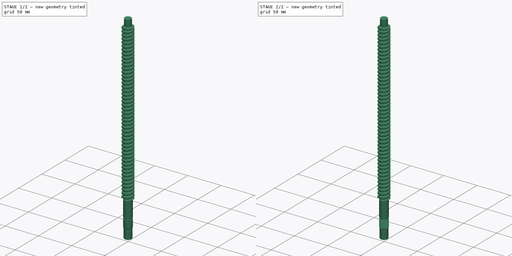
[diagram: build sequence overview — one tinted view per stage of 2, left to right]
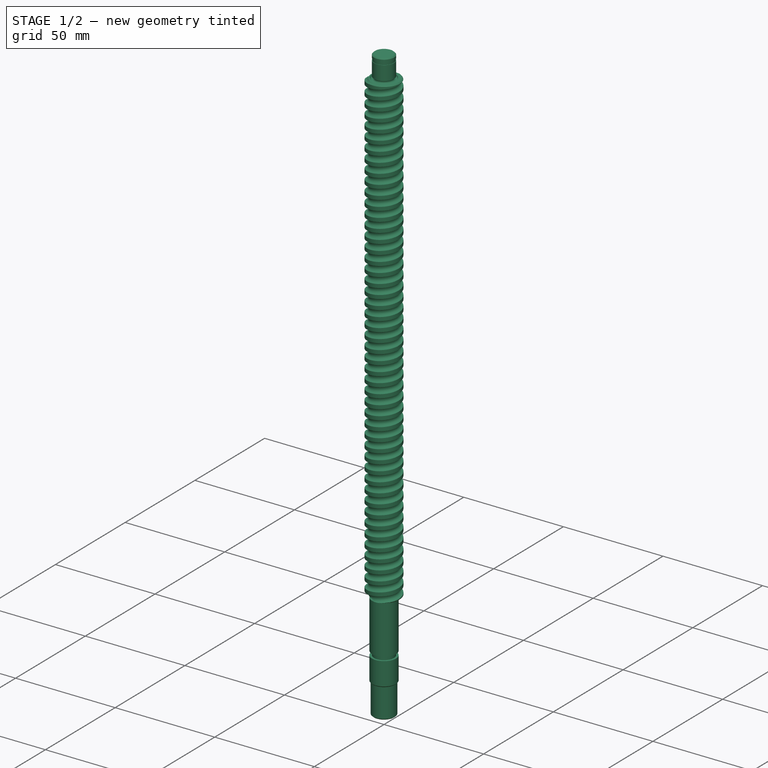
[diagram: stage 1 of 2 — iso view after this stage's code; geometry added in this stage tinted green]
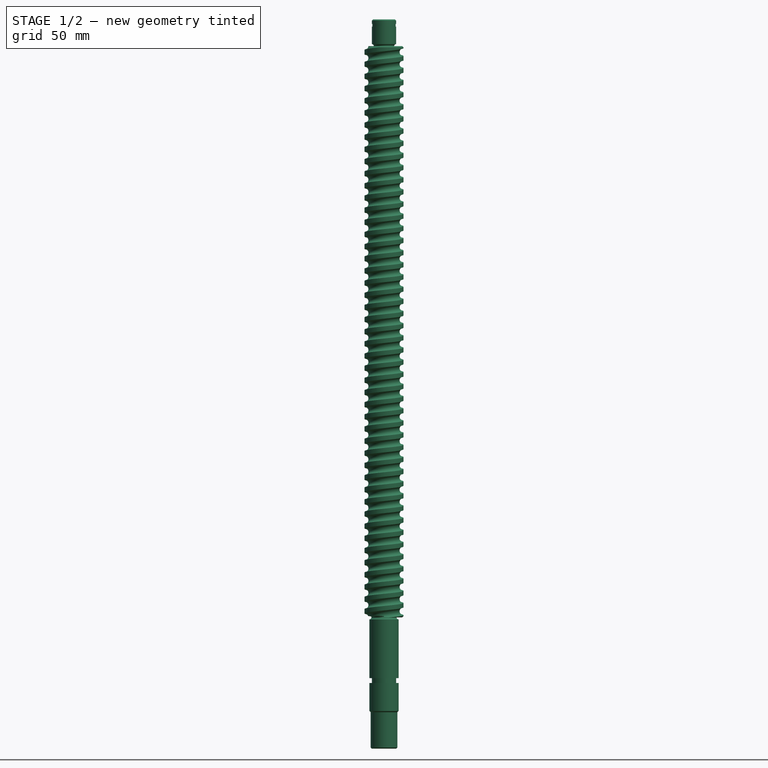
[diagram: stage 1 of 2 — front view after this stage's code; geometry added in this stage tinted green]
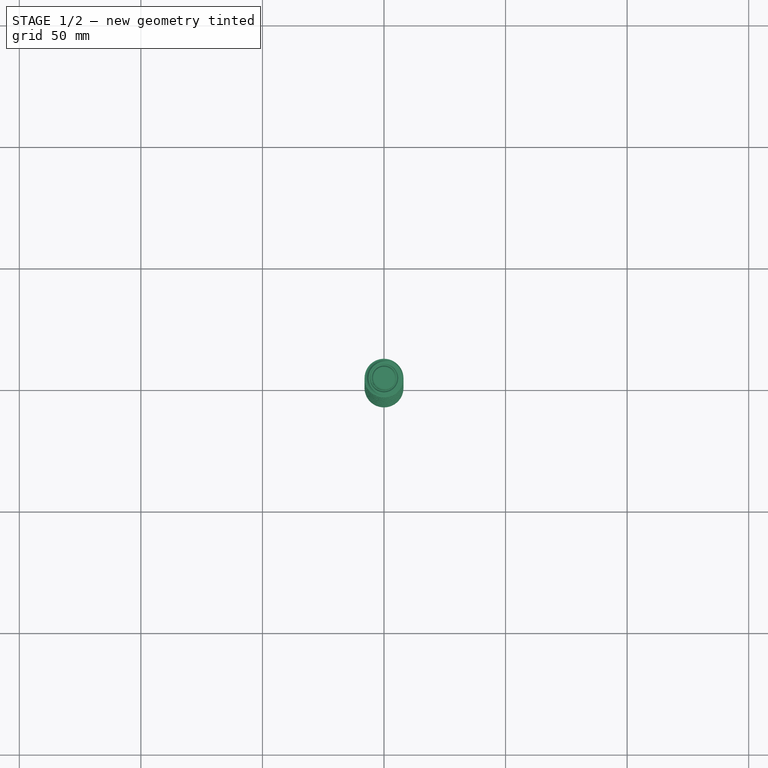
[diagram: stage 1 of 2 — top view after this stage's code; geometry added in this stage tinted green]
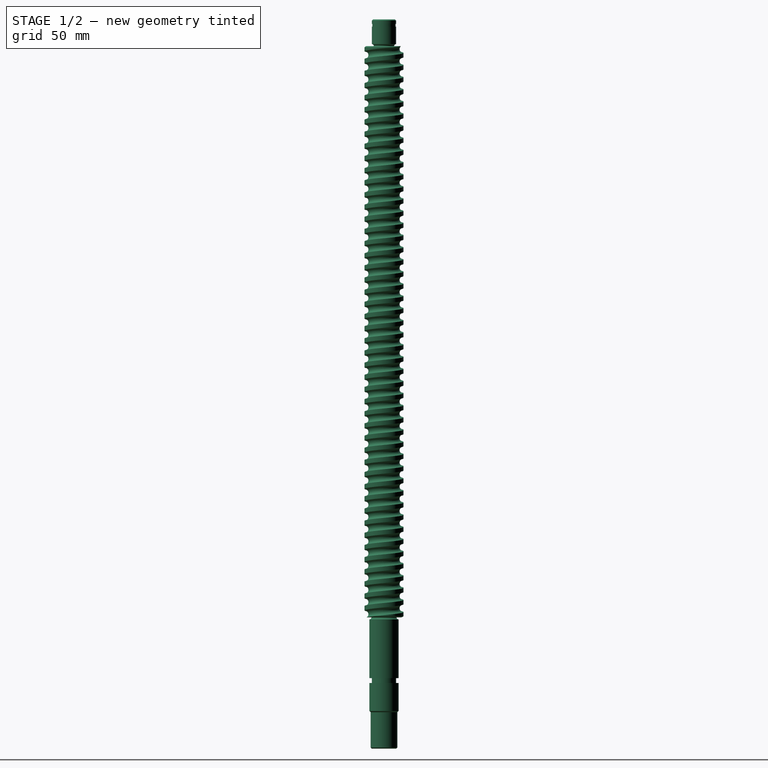
[diagram: stage 1 of 2 — right view after this stage's code; geometry added in this stage tinted green]
FCSTD DOCUMENT  (FreeCAD 0.20R29177 (Git))
Label: SFU1605-300-L
License: All rights reserved
LicenseURL: http://en.wikipedia.org/wiki/All_rights_reserved
objects: Sketcher::SketchObject×3, PartDesign::SubtractiveHelix×2, PartDesign::Revolution×1, PartDesign::Body×1
note: 10 computed .brp shape members not serialized (recipe doc carries the construction recipe); baked Part::Feature solids carry a one-line shape summary decoded from their .brp

FEATURE [Sketcher::SketchObject] Sketch
  FullyConstrained = true
  MapMode = 5
  Placement = pos=(0,0,0) rot=(1,0,0;1.5708rad)
  Support = -> [XZ_Plane]
  sketch-geometry (25):
    g0: LineSegment StartX=3.64e-14 StartY=-54 StartZ=0 EndX=5 EndY=-54 EndZ=0
    g1: LineSegment StartX=5 StartY=-54 StartZ=0 EndX=5.5 EndY=-53.5 EndZ=0
    g2: LineSegment StartX=5.5 StartY=-53.5 StartZ=0 EndX=5.5 EndY=-39 EndZ=0
    g3: LineSegment StartX=5.5 StartY=-39 StartZ=0 EndX=6 EndY=-38.5 EndZ=0
    g4: LineSegment StartX=6 StartY=-38.5 StartZ=0 EndX=6 EndY=-27 EndZ=0
    g5: LineSegment StartX=6 StartY=-27 StartZ=0 EndX=5 EndY=-27 EndZ=0
    g6: LineSegment StartX=5 StartY=-27 StartZ=0 EndX=5 EndY=-25 EndZ=0
    g7: LineSegment StartX=5 StartY=-25 StartZ=0 EndX=6 EndY=-25 EndZ=0
    g8: LineSegment StartX=6 StartY=-25 StartZ=0 EndX=6 EndY=-0.8 EndZ=0
    g9: ArcOfCircle CenterX=6 CenterY=1.3575e-12 CenterZ=0 NormalX=0 NormalY=0 NormalZ=1 AngleXU=0 Radius=0.8 StartAngle=0 EndAngle=4.71239
    g10: LineSegment StartX=6.8 StartY=1.3575e-12 StartZ=0 EndX=7.5 EndY=1.3575e-12 EndZ=0
    g11: LineSegment StartX=7.5 StartY=1.3575e-12 StartZ=0 EndX=8 EndY=0.5 EndZ=0
    g12: LineSegment StartX=8 StartY=0.5 StartZ=0 EndX=8 EndY=234.5 EndZ=0
    g13: LineSegment StartX=8 StartY=234.5 StartZ=0 EndX=7.5 EndY=235 EndZ=0
    g14: LineSegment StartX=7.5 StartY=235 StartZ=0 EndX=5.8 EndY=235 EndZ=0
    g15: GeomPoint X=8 Y=234.5 Z=0
    g16: ArcOfCircle CenterX=5 CenterY=235 CenterZ=0 NormalX=0 NormalY=0 NormalZ=1 AngleXU=0 Radius=0.8 StartAngle=1.5708 EndAngle=6.28319
    g17: LineSegment StartX=5 StartY=235.8 StartZ=0 EndX=5 EndY=243 EndZ=0
    g18: LineSegment StartX=5 StartY=243 StartZ=0 EndX=4.8 EndY=243 EndZ=0
    g19: LineSegment StartX=4.8 StartY=243 StartZ=0 EndX=4.8 EndY=244.15 EndZ=0
    g20: LineSegment StartX=4.8 StartY=244.15 StartZ=0 EndX=5 EndY=244.15 EndZ=0
    g21: LineSegment StartX=5 StartY=244.15 StartZ=0 EndX=5 EndY=245.5 EndZ=0
    g22: LineSegment StartX=5 StartY=245.5 StartZ=0 EndX=4.5 EndY=246 EndZ=0
    g23: LineSegment StartX=4.5 StartY=246 StartZ=0 EndX=3.64e-14 EndY=246 EndZ=0
    g24: LineSegment StartX=3.64e-14 StartY=246 StartZ=0 EndX=3.64e-14 EndY=-54 EndZ=0
  constraints (75):
    c: Horizontal(g0)
    c: Coincident(g0,g1)
    c: Coincident(g1,g2)
    c: Vertical(g2)
    c: Coincident(g2,g3)
    c: Coincident(g3,g4)
    c: Vertical(g4)
    c: Coincident(g4,g5)
    c: Coincident(g5,g6)
    c: Coincident(g6,g7)
    c: Coincident(g7,g8)
    c: Vertical(g8)
    c: Coincident(g9,g8)
    c: Coincident(g9,g10)
    c: Coincident(g10,g11)
    c: Coincident(g11,g12)
    c: Vertical(g12)
    c: Horizontal(g10)
    c: Angle(g11,g10) = 2.35619
    c: Coincident(g13,g14)
    c: Horizontal(g14)
    c: Coincident(g15,g13)
    c: Coincident(g13,g12)
    c: Coincident(g16,g14)
    c: Vertical(g17)
    c: Coincident(g17,g18)
    c: Coincident(g18,g19)
    c: Vertical(g19)
    c: Coincident(g19,g20)
    c: Coincident(g20,g21)
    c: Vertical(g21)
    c: Coincident(g21,g22)
    c: Coincident(g22,g23)
    c: Horizontal(g23)
    c: Coincident(g23,g24)
    c: Coincident(g24,g0)
    c: Vertical(g24)
    c: Horizontal(g5)
    c: Horizontal(g7)
    c: Vertical(g6)
    c: Coincident(g17,g16)
    c: Horizontal(g20)
    c: Horizontal(g18)
    c: Vertical(g20,g17)
    c: Angle(g22,g21) = 2.35619
    c: DistanceY(g21,g22) = 0.5
    c: Angle(g13,g12) = 2.35619
    c: DistanceY(g12,g13) = 0.5
    c: Angle(g1,g0) = 2.35619
    c: DistanceY(g0,g1) = 0.5
    c: Angle(g4,g3) = 2.35619
    c: DistanceY(g2,g3) = 0.5
    c: Vertical(g7,g4)
    c: DistanceX(g0,g0) = 5
    c: DistanceY(g0,g2) = 15
    c: DistanceY(g2,g4) = 12
    c: DistanceY(g6,g6) = 2
    c: DistanceX(g5,g4) = 1
    c: DistanceY(g10,g11) = 0.5
    c: Vertical(g9,g8)
    c: Radius(g9) = 0.8
    c: DistanceX(g0,g11) = 8
    c: Horizontal(g9,g9)
    c: DistanceY(g2,g9) = 39
    c: DistanceY(g0,g23) = 300
    c: Vertical(g16,g16)
    c: Horizontal(g16,g14)
    c: Radius(g16) = 0.8
    c: DistanceX(g23,g21) = 5
    c: DistanceX(g19,g20) = 0.2
    c: DistanceY(g17,g20) = 1.15
    c: DistanceY(g16,g23) = 11
    c: DistanceY(g14,g17) = 8
    c: PointOnObject(g23,g-2)
    c: PointOnObject(g9,g-1)
FEATURE [PartDesign::Revolution] Revolution
  Angle = 360
  Axis = (0,-2e-16,1)
  Base = (0,0,0)
  Placement = pos=(0,0,0) rot=(1,0,0;1.5708rad)
  Profile = -> Sketch
  ReferenceAxis = -> Sketch [V_Axis]
FEATURE [Sketcher::SketchObject] Sketch001
  FullyConstrained = false
  MapMode = 5
  Placement = pos=(0,0,0) rot=(1,0,0;1.5708rad)
  Support = -> [XZ_Plane]
  sketch-geometry (1):
    g0: Circle CenterX=8 CenterY=-2.45988 CenterZ=0 NormalX=0 NormalY=0 NormalZ=1 AngleXU=0 Radius=1.5875
  constraints (2):
    c: Diameter(g0) = 3.175
    c: DistanceX(g-1,g0) = 8
FEATURE [Sketcher::SketchObject] Sketch002
  FullyConstrained = false
  MapMode = 5
  Placement = pos=(0,0,0) rot=(1,0,0;1.5708rad)
  Support = -> [XZ_Plane]
  sketch-geometry (3):
    g0: LineSegment StartX=5.45 StartY=-39.2044 StartZ=0 EndX=6.22618 EndY=-39.6525 EndZ=0
    g1: LineSegment StartX=6.22618 StartY=-39.6525 StartZ=0 EndX=6.22618 EndY=-38.7563 EndZ=0
    g2: LineSegment StartX=6.22618 StartY=-38.7563 StartZ=0 EndX=5.45 EndY=-39.2044 EndZ=0
  constraints (7):
    c: Coincident(g0,g1)
    c: Vertical(g1)
    c: Coincident(g1,g2)
    c: Coincident(g2,g0)
    c: Equal(g0,g2)
    c: Equal(g2,g1)
    c: DistanceX(g-1,g0) = 5.45
FEATURE [PartDesign::SubtractiveHelix] SubtractiveHelix
  Angle = 0
  Axis = (0,-2e-16,1)
  Base = (0,0,0)
  BaseFeature = -> Revolution
  Growth = 0
  HasBeenEdited = true
  Height = 310
  LeftHanded = false
  Mode = 0
  Outside = false
  Pitch = 5
  Placement = pos=(0,0,0) rot=(1,0,0;1.5708rad)
  Profile = -> Sketch001
  ReferenceAxis = -> Sketch001 [V_Axis]
  Turns = 62
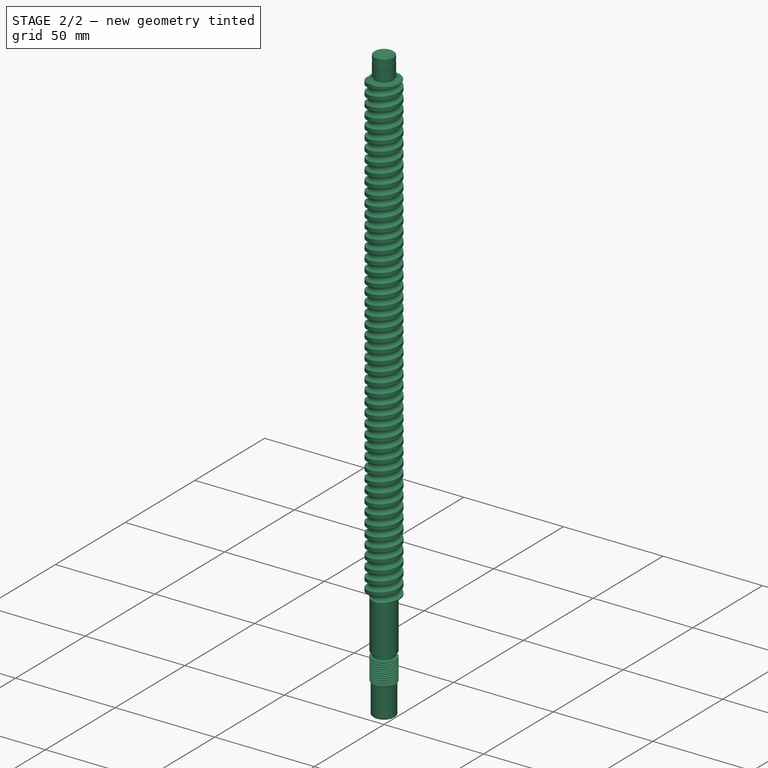
[diagram: stage 2 of 2 — iso view after this stage's code; geometry added in this stage tinted green]
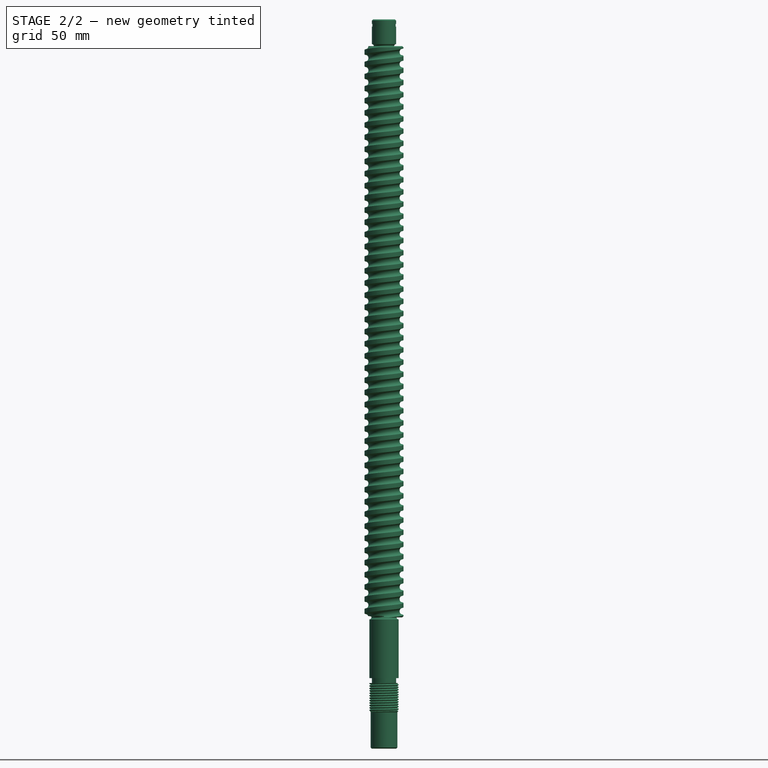
[diagram: stage 2 of 2 — front view after this stage's code; geometry added in this stage tinted green]
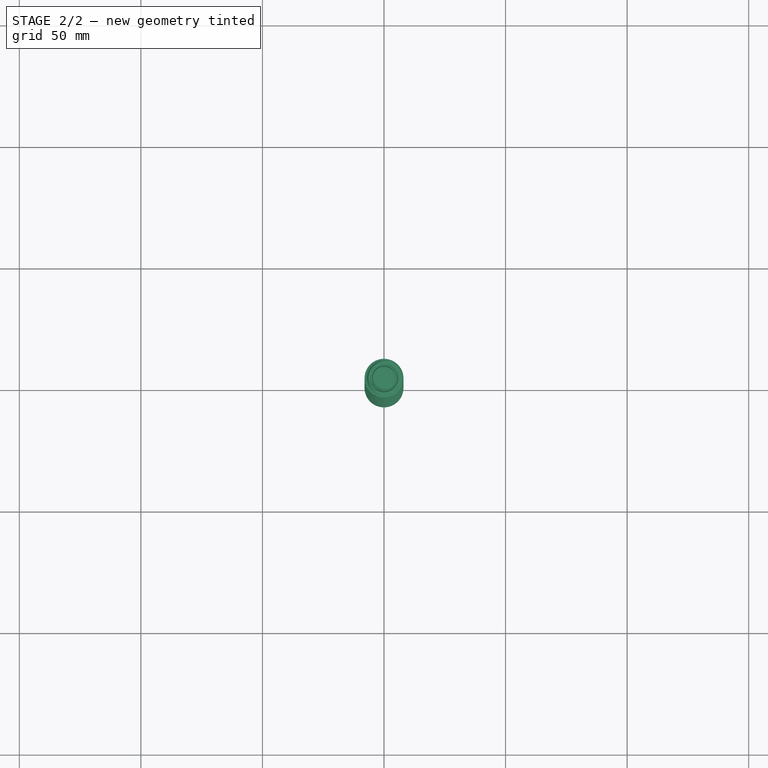
[diagram: stage 2 of 2 — top view after this stage's code; geometry added in this stage tinted green]
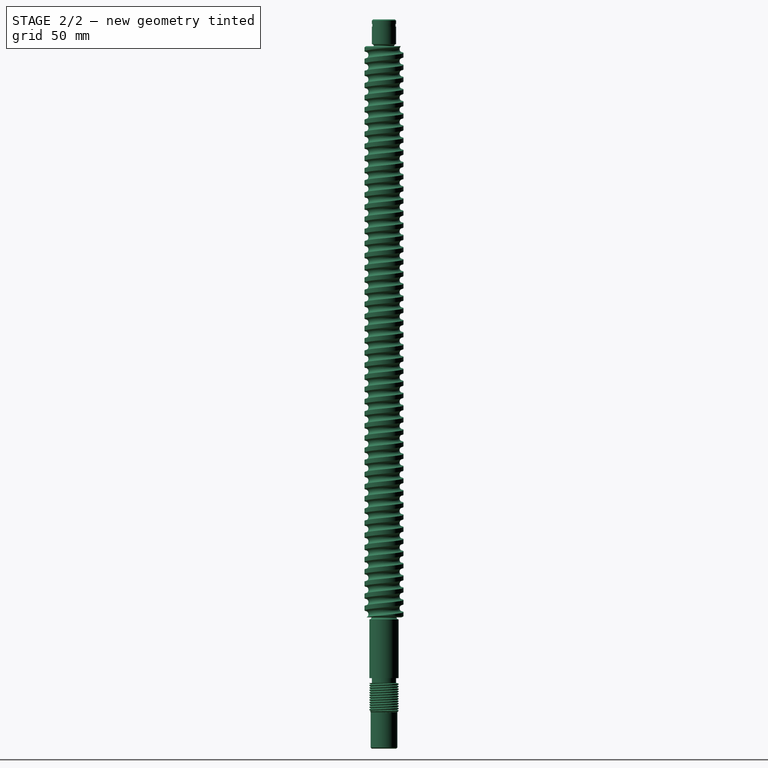
[diagram: stage 2 of 2 — right view after this stage's code; geometry added in this stage tinted green]
FEATURE [PartDesign::SubtractiveHelix] SubtractiveHelix001
  Angle = 0
  Axis = (0,-2e-16,1)
  Base = (0,0,0)
  BaseFeature = -> SubtractiveHelix
  Growth = 0
  HasBeenEdited = true
  Height = 13
  LeftHanded = false
  Mode = 0
  Outside = false
  Pitch = 1
  Placement = pos=(0,0,0) rot=(1,0,0;1.5708rad)
  Profile = -> Sketch002
  ReferenceAxis = -> Sketch002 [V_Axis]
  Turns = 13
FEATURE [PartDesign::Body] Body
  Group = -> [Sketch,Revolution,Sketch001,Sketch002,SubtractiveHelix,SubtractiveHelix001]
  Origin = -> Origin
  Tip = -> SubtractiveHelix001
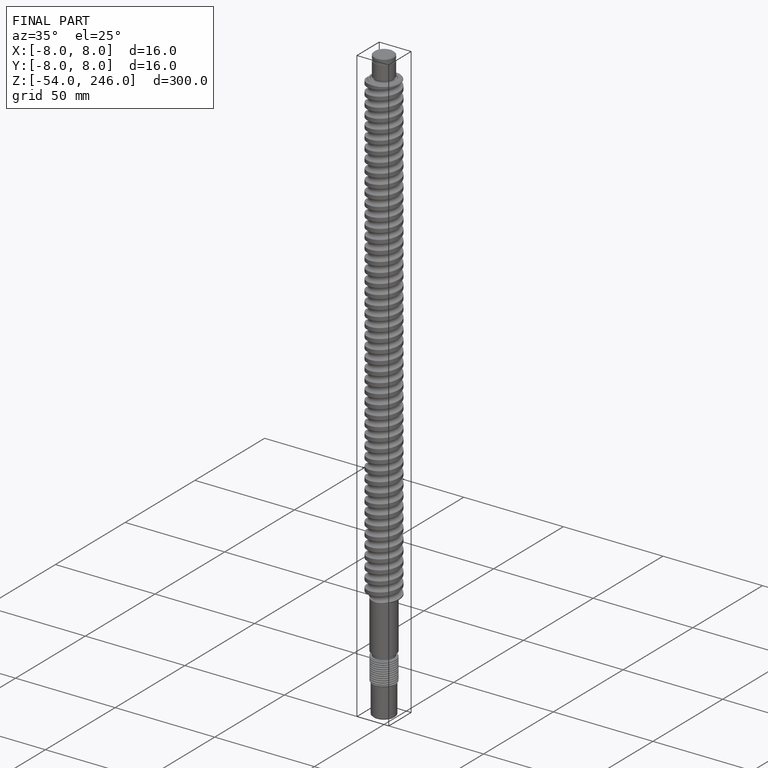
[diagram: finished part — iso view with bounding-box wireframe]
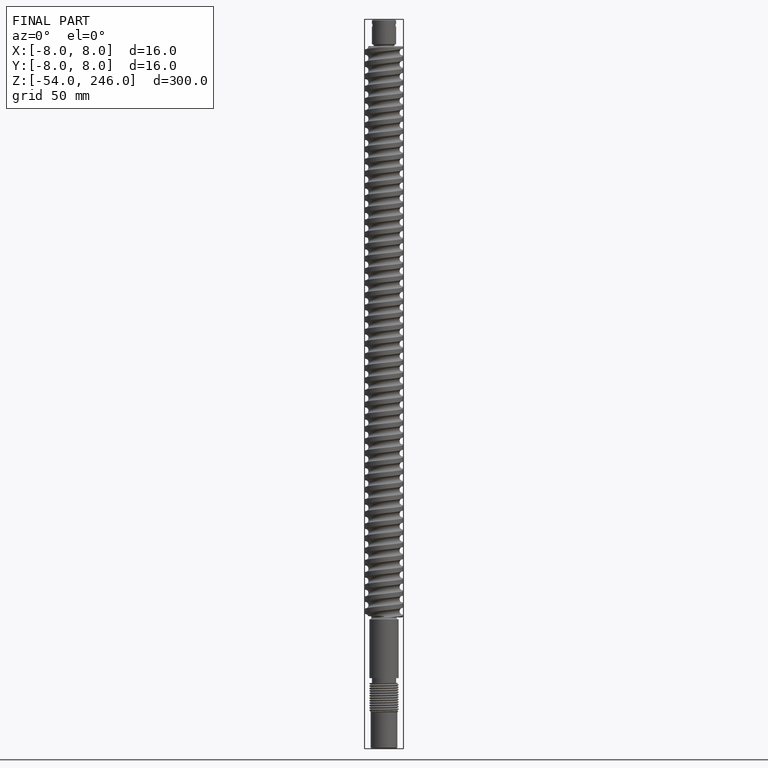
[diagram: finished part — front view with bounding-box wireframe]
